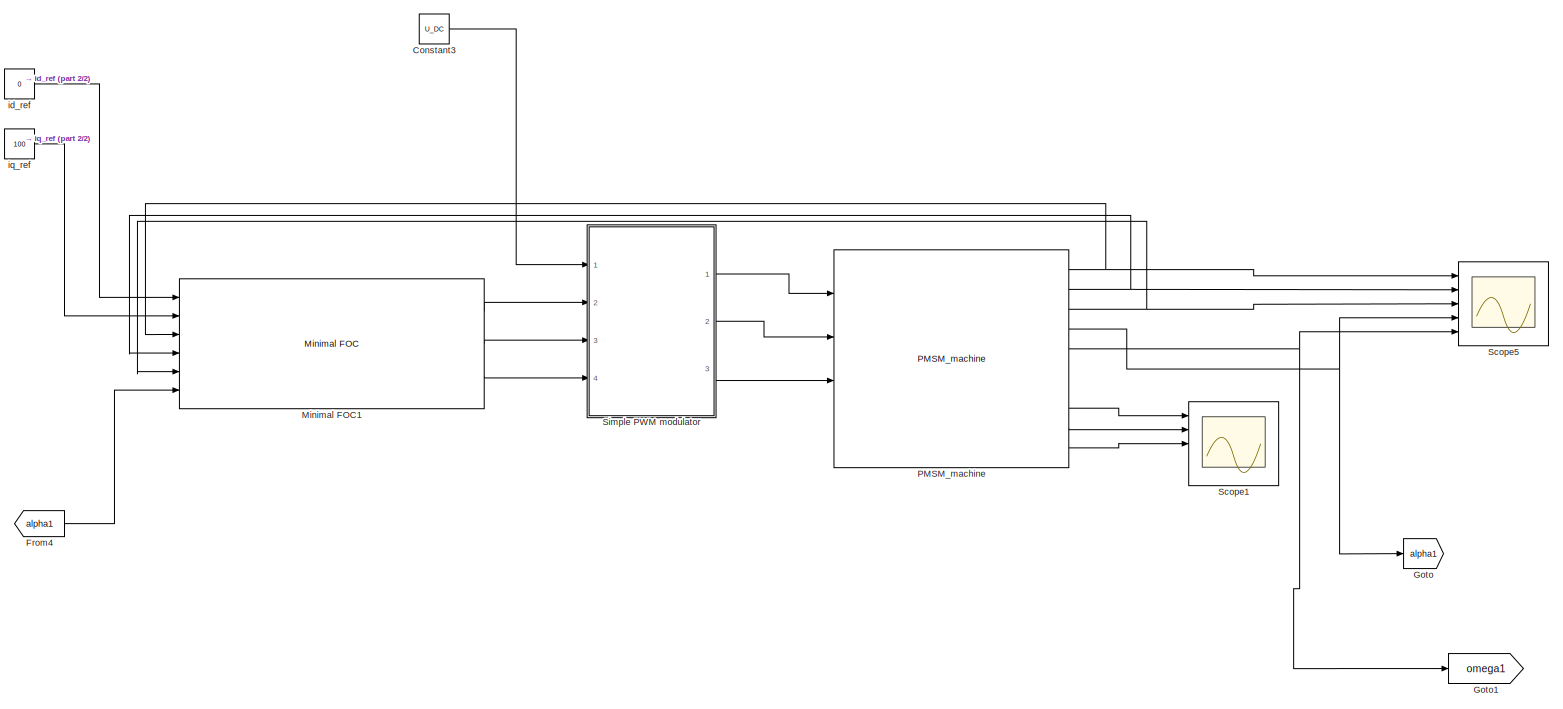
[diagram: root canvas - part 1/2, most of the canvas]
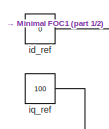
[diagram: root canvas - part 2/2, top left region]
MODEL slx_0113adc5eb58
KIND model
CONFIG AbsTol = auto
CONFIG EnableMultiTasking = off
CONFIG FixedStep = auto
CONFIG MaxStep = 1e-6
CONFIG MinStep = auto
CONFIG RelTol = 1e-3
CONFIG SampleTimeConstraint = Unconstrained
CONFIG Solver = VariableStepAuto
CONFIG SolverName = VariableStepAuto
CONFIG StartTime = 0.0
CONFIG StopTime = 0.5
BLOCK [Constant] Constant3
  Value = U_DC
BLOCK [From] From4
  GotoTag = alpha1
BLOCK [Goto] Goto
  GotoTag = alpha1
BLOCK [Goto] Goto1
  GotoTag = omega1
BLOCK [Reference] Minimal FOC1  REF=controllers/Minimal FOC  (lib defined in mdl_0f1bdf7b97cc, mdl_b570f3ba1b2b, +8 more)
  Ports = [6, 3]
  SourceBlock = controllers/Minimal FOC
  SourceType = SubSystem
BLOCK [Reference] PMSM_machine  REF=PE_components/PMSM_machine
  Ports = [4, 10]
  SourceBlock = PE_components/PMSM_machine
  SourceType = SubSystem
BLOCK [Scope] Scope1
  Floating = off
  NumInputPorts = 5
  Ports = [5]
  ScopeSpecificationString = Simulink.scopes.TimeScopeBlockCfg('CurrentConfiguration', extmgr.ConfigurationSet(extmgr.Configuration('Core','General UI',true),extmgr.Configuration('Core','Source UI',true),extmgr.Configuration('Sources','WiredSimulink',true,'DataLoggingVariableName','ScopeData1'),extmgr.Configuration('Visuals','Time Domain',true,'SerializedDisplays',{struct('MinYLimReal','-280.47194','MaxYLimReal','279.479','YL...<+2203ch>
BLOCK [Scope] Scope5
  Floating = off
  NumInputPorts = 5
  Ports = [5]
  ScopeSpecificationString = Simulink.scopes.TimeScopeBlockCfg('CurrentConfiguration', extmgr.ConfigurationSet(extmgr.Configuration('Core','General UI',true),extmgr.Configuration('Core','Source UI',true),extmgr.Configuration('Sources','WiredSimulink',true,'DataLoggingVariableName','ScopeData5'),extmgr.Configuration('Visuals','Time Domain',true,'SerializedDisplays',{struct('MinYLimReal','-174.86197','MaxYLimReal','492.43634','...<+2322ch>
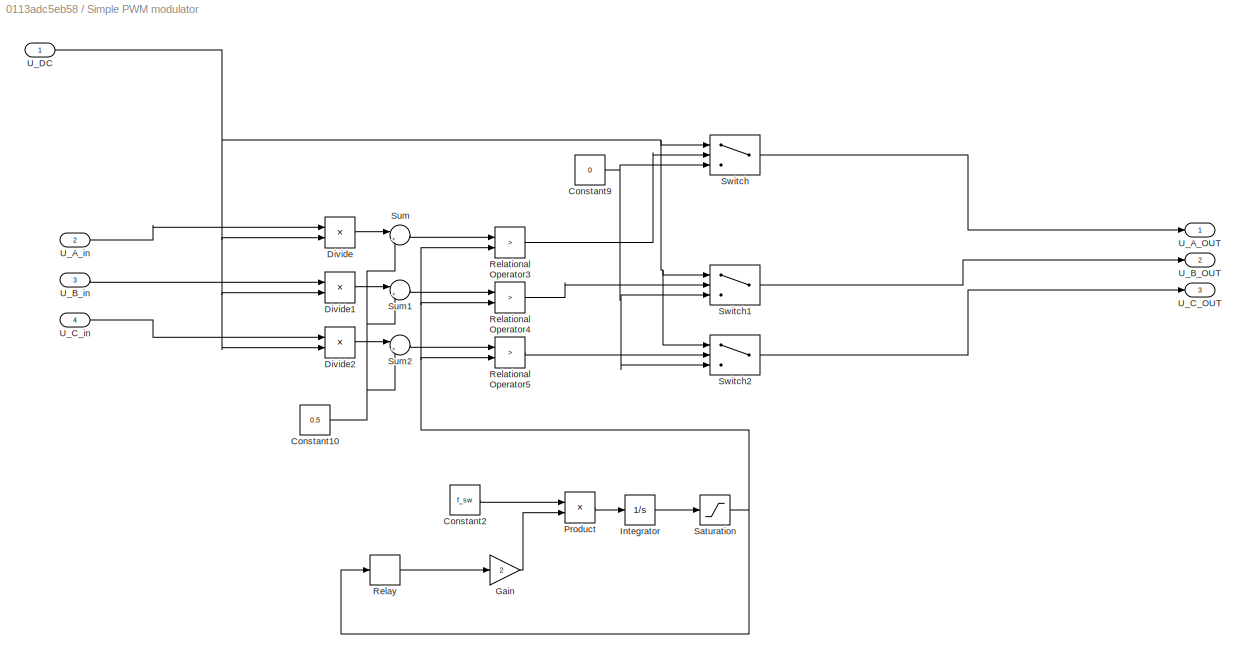
BLOCK [SubSystem] Simple PWM modulator
  Ports = [4, 3]
  RequestExecContextInheritance = off
BLOCK [Constant] Simple PWM modulator/Constant10
  Value = 0.5
BLOCK [Constant] Simple PWM modulator/Constant2
  Value = f_sw
BLOCK [Constant] Simple PWM modulator/Constant9
  Value = 0
BLOCK [Product] Simple PWM modulator/Divide
  InputSameDT = off
  Inputs = */
  OutDataTypeStr = Inherit: Inherit via internal rule
  Ports = [2, 1]
  RndMeth = Floor
  SaturateOnIntegerOverflow = off
BLOCK [Product] Simple PWM modulator/Divide1
  InputSameDT = off
  Inputs = */
  OutDataTypeStr = Inherit: Inherit via internal rule
  Ports = [2, 1]
  RndMeth = Floor
  SaturateOnIntegerOverflow = off
BLOCK [Product] Simple PWM modulator/Divide2
  InputSameDT = off
  Inputs = */
  OutDataTypeStr = Inherit: Inherit via internal rule
  Ports = [2, 1]
  RndMeth = Floor
  SaturateOnIntegerOverflow = off
BLOCK [Gain] Simple PWM modulator/Gain
  Gain = 2
  OutDataTypeStr = Inherit: Inherit via internal rule
  ParamDataTypeStr = Inherit: Inherit via internal rule
  SaturateOnIntegerOverflow = off
BLOCK [Integrator] Simple PWM modulator/Integrator
  Ports = [1, 1]
BLOCK [Product] Simple PWM modulator/Product
  InputSameDT = off
  OutDataTypeStr = Inherit: Inherit via internal rule
  Ports = [2, 1]
  RndMeth = Floor
  SaturateOnIntegerOverflow = off
BLOCK [RelationalOperator] Simple PWM modulator/Relational Operator3
  InputSameDT = off
  Operator = >
  OutDataTypeStr = boolean
  Ports = [2, 1]
  RndMeth = Simplest
BLOCK [RelationalOperator] Simple PWM modulator/Relational Operator4
  InputSameDT = off
  Operator = >
  OutDataTypeStr = boolean
  Ports = [2, 1]
  RndMeth = Simplest
BLOCK [RelationalOperator] Simple PWM modulator/Relational Operator5
  InputSameDT = off
  Operator = >
  OutDataTypeStr = boolean
  Ports = [2, 1]
  RndMeth = Simplest
BLOCK [Relay] Simple PWM modulator/Relay
  OffOutputValue = 1
  OffSwitchValue = 0
  OnOutputValue = -1
  OnSwitchValue = 1
BLOCK [Saturate] Simple PWM modulator/Saturation
  InputPortMap = u0
  LowerLimit = 0
  Ports = [1, 1]
  UpperLimit = 1
BLOCK [Sum] Simple PWM modulator/Sum
  IconShape = round
  InputSameDT = off
  Inputs = |++
  OutDataTypeStr = Inherit: Inherit via internal rule
  Ports = [2, 1]
  SaturateOnIntegerOverflow = off
BLOCK [Sum] Simple PWM modulator/Sum1
  IconShape = round
  InputSameDT = off
  Inputs = |++
  OutDataTypeStr = Inherit: Inherit via internal rule
  Ports = [2, 1]
  SaturateOnIntegerOverflow = off
BLOCK [Sum] Simple PWM modulator/Sum2
  IconShape = round
  InputSameDT = off
  Inputs = |++
  OutDataTypeStr = Inherit: Inherit via internal rule
  Ports = [2, 1]
  SaturateOnIntegerOverflow = off
BLOCK [Switch] Simple PWM modulator/Switch
  InputSameDT = off
  SaturateOnIntegerOverflow = off
  Threshold = 1
BLOCK [Switch] Simple PWM modulator/Switch1
  InputSameDT = off
  SaturateOnIntegerOverflow = off
  Threshold = 1
BLOCK [Switch] Simple PWM modulator/Switch2
  InputSameDT = off
  SaturateOnIntegerOverflow = off
  Threshold = 1
BLOCK [Outport] Simple PWM modulator/U_A_OUT
  IconDisplay = Port number
BLOCK [Inport] Simple PWM modulator/U_A_in
  IconDisplay = Port number
  Port = 2
BLOCK [Outport] Simple PWM modulator/U_B_OUT
  IconDisplay = Port number
  Port = 2
BLOCK [Inport] Simple PWM modulator/U_B_in
  IconDisplay = Port number
  Port = 3
BLOCK [Outport] Simple PWM modulator/U_C_OUT
  IconDisplay = Port number
  Port = 3
BLOCK [Inport] Simple PWM modulator/U_C_in
  IconDisplay = Port number
  Port = 4
BLOCK [Inport] Simple PWM modulator/U_DC
  IconDisplay = Port number
BLOCK [Constant] id_ref
  Value = 0
BLOCK [Constant] iq_ref
  Value = 100
LINE Constant3:1 -> Simple PWM modulator:1
LINE From4:1 -> Minimal FOC1:6
LINE Minimal FOC1:1 -> Simple PWM modulator:2
LINE Minimal FOC1:2 -> Simple PWM modulator:3
LINE Minimal FOC1:3 -> Simple PWM modulator:4
NET PMSM_machine:1 -> Minimal FOC1:3, Scope5:1
LINE PMSM_machine:10 -> Scope1:3
NET PMSM_machine:2 -> Minimal FOC1:4, Scope5:2
NET PMSM_machine:3 -> Minimal FOC1:5, Scope5:3
NET PMSM_machine:4 -> Goto:1, Scope5:4
NET PMSM_machine:5 -> Goto1:1, Scope5:5
LINE PMSM_machine:8 -> Scope1:1
LINE PMSM_machine:9 -> Scope1:2
NET Simple PWM modulator/Constant10:1 -> Simple PWM modulator/Sum1:2, Simple PWM modulator/Sum2:2, Simple PWM modulator/Sum:2
LINE Simple PWM modulator/Constant2:1 -> Simple PWM modulator/Product:1
NET Simple PWM modulator/Constant9:1 -> Simple PWM modulator/Switch1:3, Simple PWM modulator/Switch2:3, Simple PWM modulator/Switch:3
LINE Simple PWM modulator/Divide1:1 -> Simple PWM modulator/Sum1:1
LINE Simple PWM modulator/Divide2:1 -> Simple PWM modulator/Sum2:1
LINE Simple PWM modulator/Divide:1 -> Simple PWM modulator/Sum:1
LINE Simple PWM modulator/Gain:1 -> Simple PWM modulator/Product:2
LINE Simple PWM modulator/Integrator:1 -> Simple PWM modulator/Saturation:1
LINE Simple PWM modulator/Product:1 -> Simple PWM modulator/Integrator:1
LINE Simple PWM modulator/Relational Operator3:1 -> Simple PWM modulator/Switch:2
LINE Simple PWM modulator/Relational Operator4:1 -> Simple PWM modulator/Switch1:2
LINE Simple PWM modulator/Relational Operator5:1 -> Simple PWM modulator/Switch2:2
LINE Simple PWM modulator/Relay:1 -> Simple PWM modulator/Gain:1
NET Simple PWM modulator/Saturation:1 -> Simple PWM modulator/Relational Operator3:2, Simple PWM modulator/Relational Operator4:2, Simple PWM modulator/Relational Operator5:2, Simple PWM modulator/Relay:1
LINE Simple PWM modulator/Sum1:1 -> Simple PWM modulator/Relational Operator4:1
LINE Simple PWM modulator/Sum2:1 -> Simple PWM modulator/Relational Operator5:1
LINE Simple PWM modulator/Sum:1 -> Simple PWM modulator/Relational Operator3:1
LINE Simple PWM modulator/Switch1:1 -> Simple PWM modulator/U_B_OUT:1
LINE Simple PWM modulator/Switch2:1 -> Simple PWM modulator/U_C_OUT:1
LINE Simple PWM modulator/Switch:1 -> Simple PWM modulator/U_A_OUT:1
LINE Simple PWM modulator/U_A_in:1 -> Simple PWM modulator/Divide:1
LINE Simple PWM modulator/U_B_in:1 -> Simple PWM modulator/Divide1:1
LINE Simple PWM modulator/U_C_in:1 -> Simple PWM modulator/Divide2:1
NET Simple PWM modulator/U_DC:1 -> Simple PWM modulator/Divide1:2, Simple PWM modulator/Divide2:2, Simple PWM modulator/Divide:2, Simple PWM modulator/Switch1:1, Simple PWM modulator/Switch2:1, Simple PWM modulator/Switch:1
LINE Simple PWM modulator:1 -> PMSM_machine:1
LINE Simple PWM modulator:2 -> PMSM_machine:2
LINE Simple PWM modulator:3 -> PMSM_machine:3
LINE id_ref:1 -> Minimal FOC1:1
LINE iq_ref:1 -> Minimal FOC1:2
note: NET lines group one-source signal fan-out (src -> all destinations, sorted); 1:1 wires keep LINE
